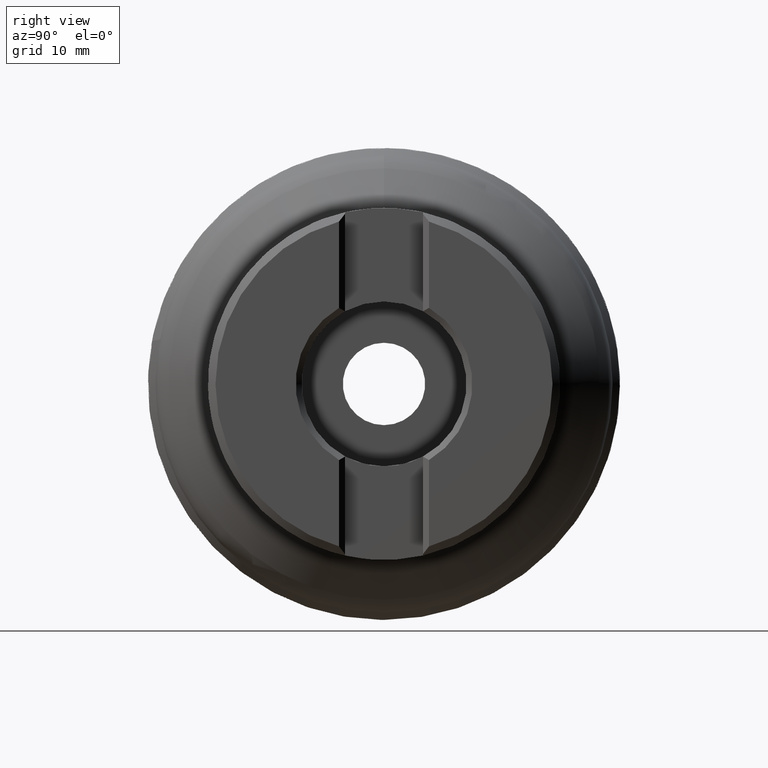
[diagram: clean part render]
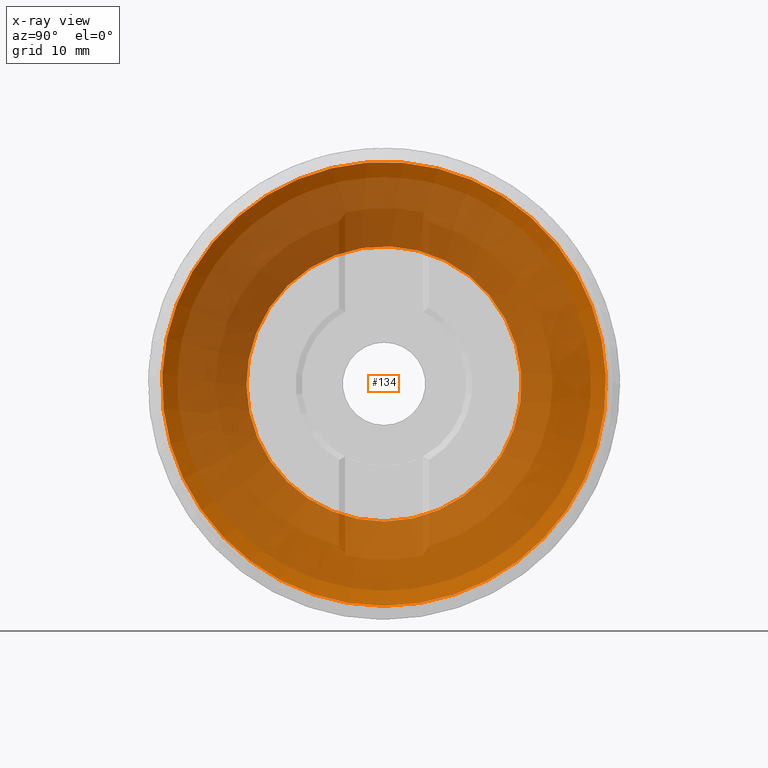
[diagram: x-ray — body ghosted, one internal face saturated and labeled with its STEP entity id]
A machine part, right view, then the same camera in x-ray: the body is ghosted and one INTERNAL B-rep face — a face not visible from any outside direction — is saturated and labeled: STEP entity #134.
In plain terms, the highlighted face is a SurfaceOfRevolution surface.
Its self-contained STEP definition (entity closure, byte-faithful):
#134=ADVANCED_FACE('',(#305,#306),#192,.F.);
#192=SURFACE_OF_REVOLUTION('',#221,#212);
#212=AXIS1_PLACEMENT('',#1281,#1008);
#221=LINE('',#1280,#249);
#249=VECTOR('',#1007,13.188822721936);
#305=FACE_BOUND('',#389,.T.);
#306=FACE_BOUND('',#390,.T.);
#389=EDGE_LOOP('',(#489));
#390=EDGE_LOOP('',(#490));
#489=ORIENTED_EDGE('',*,*,#713,.T.);
#490=ORIENTED_EDGE('',*,*,#712,.F.);
#642=VERTEX_POINT('',#1275);
#643=VERTEX_POINT('',#1279);
#712=EDGE_CURVE('',#642,#642,#800,.T.);
#713=EDGE_CURVE('',#643,#643,#801,.T.);
#800=CIRCLE('',#860,18.3682050154893);
#801=CIRCLE('',#861,29.6379312073546);
#860=AXIS2_PLACEMENT_3D('',#1274,#1001,#1002);
#861=AXIS2_PLACEMENT_3D('',#1278,#1005,#1006);
#1001=DIRECTION('',(1.,0.,0.));
#1002=DIRECTION('',(0.,0.,-1.));
#1005=DIRECTION('',(1.,0.,0.));
#1006=DIRECTION('',(0.,0.,-1.));
#1007=DIRECTION('',(0.420381000014778,-0.90577479133724,-0.0534026422993721));
#1008=DIRECTION('',(1.,0.,0.));
#1274=CARTESIAN_POINT('',(6.33747074395069,0.,0.));
#1275=CARTESIAN_POINT('',(6.33747074395069,0.,-18.3682050154893));
#1278=CARTESIAN_POINT('',(11.8818012288158,0.,0.));
#1279=CARTESIAN_POINT('',(11.8818012288158,0.,-29.6379312073546));
#1280=CARTESIAN_POINT('',(6.33747074395069,-17.0526819839199,6.82619898965303));
#1281=CARTESIAN_POINT('',(0.,0.,0.));